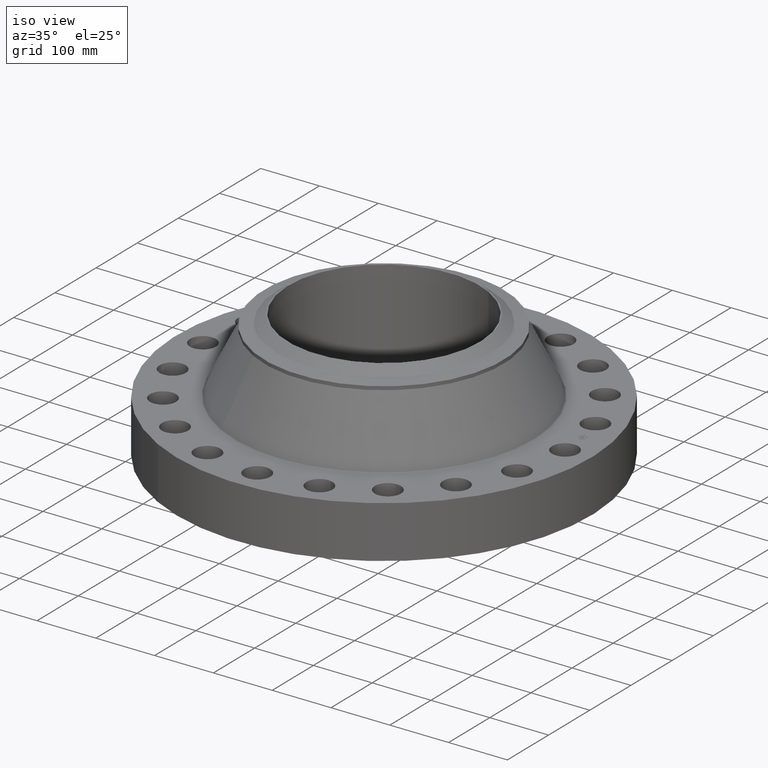
[diagram: clean part render]
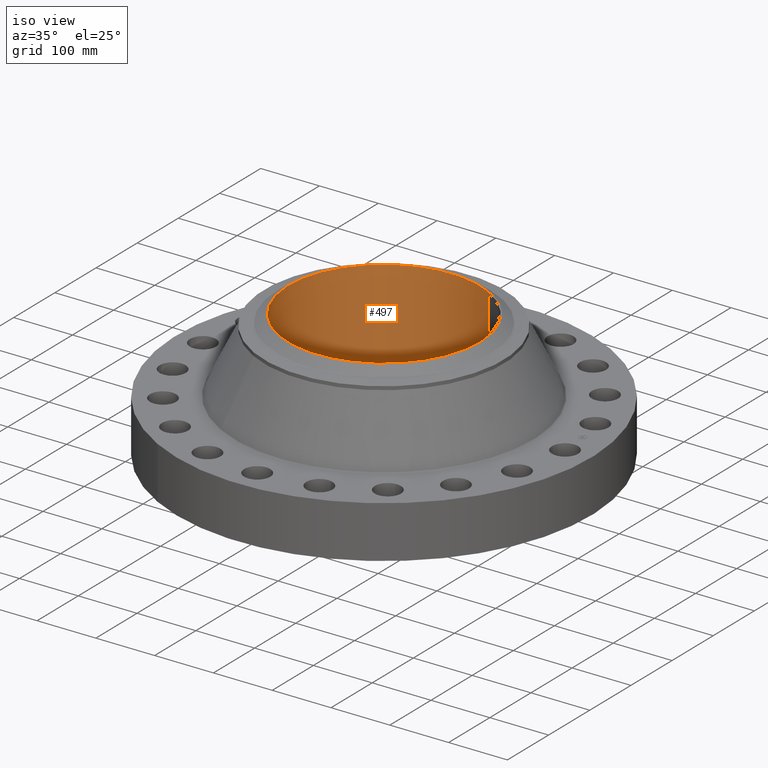
[diagram: same view with one face highlighted and labeled with its STEP entity id]
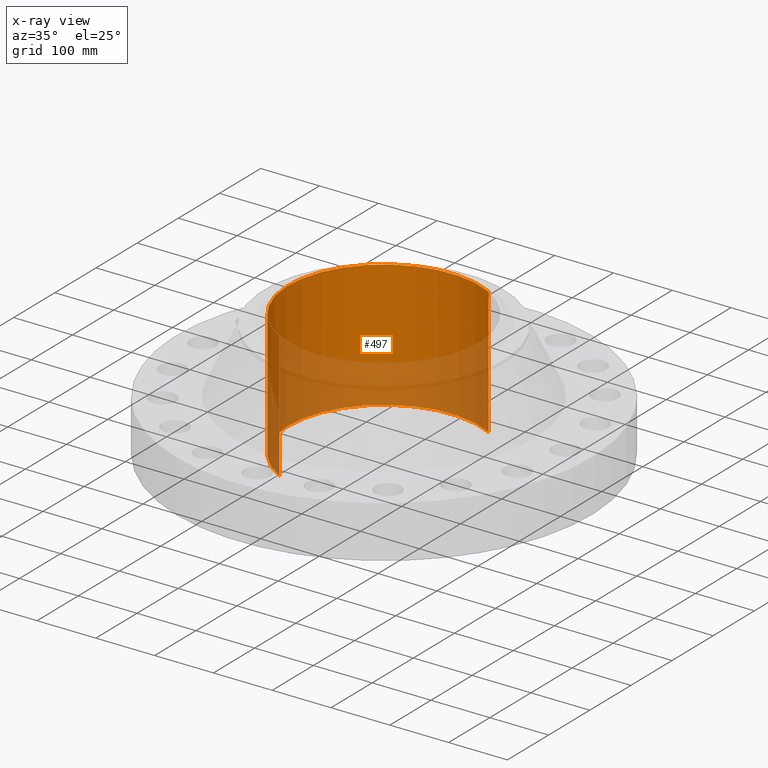
[diagram: x-ray of the same camera — body ghosted, the highlighted face saturated]
A machine part, iso view. The second image highlights one B-rep face of the part: STEP entity #497.
The next image is the same camera in x-ray: the body ghosted, the highlighted face saturated — about 41% of this face is hidden behind the body in this view.
In plain terms, the highlighted cylindrical surface (partial cylindrical patch) has radius 162.712 mm, axis along (0, 0, -1).
Its self-contained STEP definition (entity closure, byte-faithful):
#435=AXIS2_PLACEMENT_3D('Circle Axis2P3D',#433,#434,$) ;
#470=AXIS2_PLACEMENT_3D('Cylinder Axis2P3D',#467,#468,#469) ;
#481=AXIS2_PLACEMENT_3D('Circle Axis2P3D',#479,#480,$) ;
#433=CARTESIAN_POINT('Axis2P3D Location',(0.,0.,8.50000000003)) ;
#437=CARTESIAN_POINT('Vertex',(-3.07120000031,-5.62179389149,8.50000000003)) ;
#439=CARTESIAN_POINT('Vertex',(3.07120000031,5.62179389149,8.50000000003)) ;
#467=CARTESIAN_POINT('Axis2P3D Location',(0.,0.,4.25000000002)) ;
#472=CARTESIAN_POINT('Line Origine',(-3.07120000031,-5.62179389149,4.25000000002)) ;
#476=CARTESIAN_POINT('Vertex',(-3.07120000031,-5.62179389149,-4.9234457281E-014)) ;
#479=CARTESIAN_POINT('Axis2P3D Location',(0.,0.,-4.9234457281E-014)) ;
#483=CARTESIAN_POINT('Vertex',(3.07120000031,5.62179389149,-4.9234457281E-014)) ;
#486=CARTESIAN_POINT('Line Origine',(3.07120000031,5.62179389149,4.25000000002)) ;
#434=DIRECTION('Axis2P3D Direction',(0.,0.,-0.0393700787402)) ;
#468=DIRECTION('Axis2P3D Direction',(0.,0.,-0.0393700787402)) ;
#469=DIRECTION('Axis2P3D XDirection',(0.0188750212049,0.0345504945626,0.)) ;
#473=DIRECTION('Vector Direction',(0.,0.,-0.0393700787402)) ;
#480=DIRECTION('Axis2P3D Direction',(0.,0.,-0.0393700787402)) ;
#487=DIRECTION('Vector Direction',(0.,0.,-0.0393700787402)) ;
#474=VECTOR('Line Direction',#473,0.0393700787402) ;
#488=VECTOR('Line Direction',#487,0.0393700787402) ;
#492=ORIENTED_EDGE('',*,*,#441,.F.) ;
#493=ORIENTED_EDGE('',*,*,#478,.T.) ;
#494=ORIENTED_EDGE('',*,*,#485,.T.) ;
#495=ORIENTED_EDGE('',*,*,#490,.F.) ;
#497=ADVANCED_FACE('PartBody',(#496),#471,.F.) ;
#436=CIRCLE('generated circle',#435,6.40600000003) ;
#482=CIRCLE('generated circle',#481,6.40600000003) ;
#471=CYLINDRICAL_SURFACE('generated cylinder',#470,6.40600000003) ;
#441=EDGE_CURVE('',#438,#440,#436,.T.) ;
#478=EDGE_CURVE('',#438,#477,#475,.T.) ;
#485=EDGE_CURVE('',#477,#484,#482,.T.) ;
#490=EDGE_CURVE('',#440,#484,#489,.T.) ;
#491=EDGE_LOOP('',(#492,#493,#494,#495)) ;
#496=FACE_OUTER_BOUND('',#491,.T.) ;
#475=LINE('Line',#472,#474) ;
#489=LINE('Line',#486,#488) ;
#438=VERTEX_POINT('',#437) ;
#440=VERTEX_POINT('',#439) ;
#477=VERTEX_POINT('',#476) ;
#484=VERTEX_POINT('',#483) ;